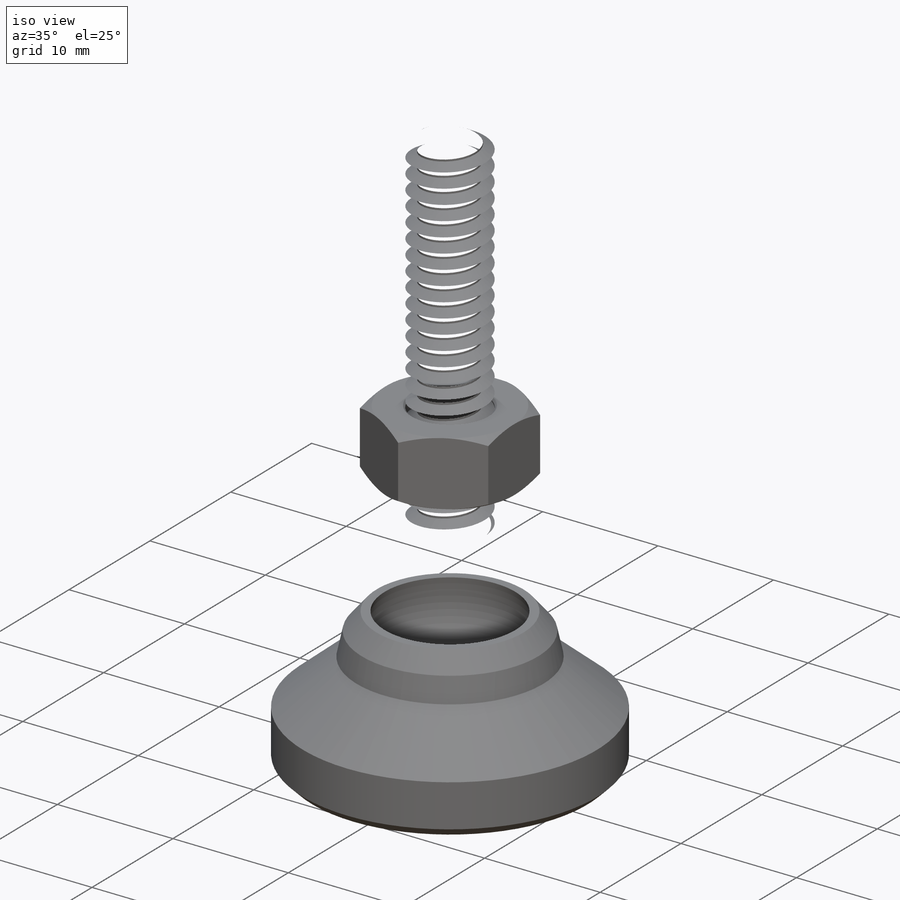
[diagram: iso view]
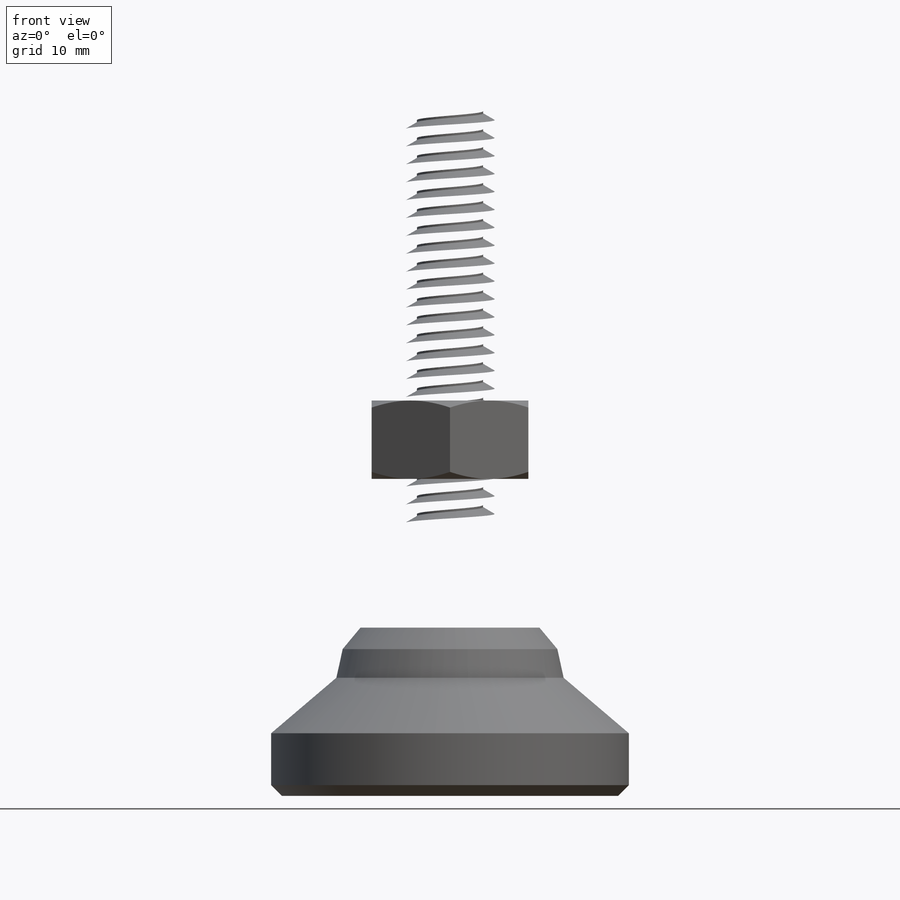
[diagram: front view]
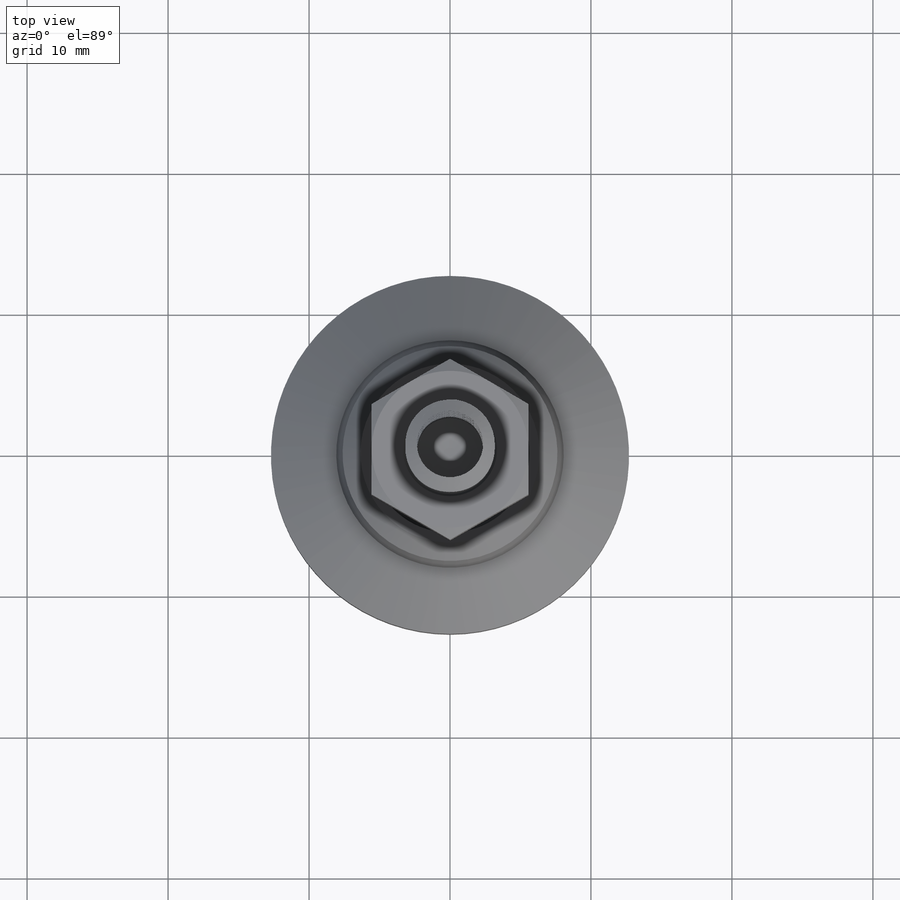
[diagram: top view]
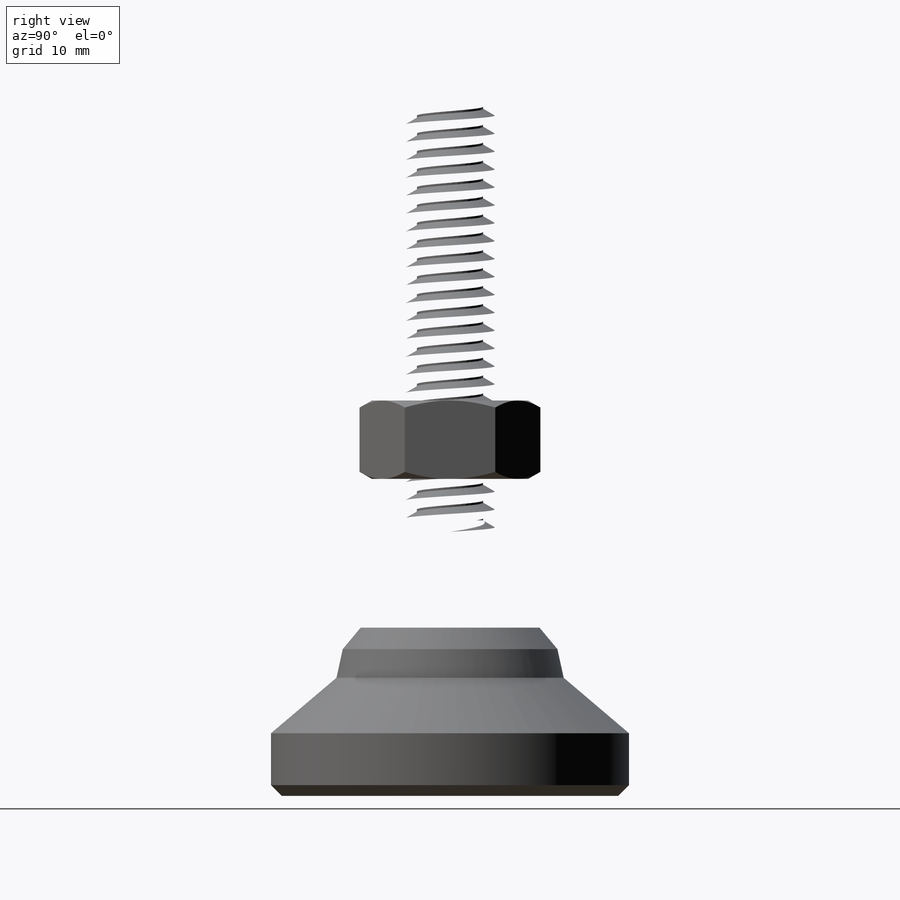
[diagram: right view]
SOLIDWORKS PART (.sldprt)
format: sldprt  version: not decoded by parser v0  size: 1,263,104 bytes
history: native  units: mm
features: sketch x14, revolve x4, extrude x3, cut_revolve x2, material x1, helix x1, sweep x1, cut_extrude x1, boolean_combine x1, plane x1 (+14 scaffold rows collapsed)
feature tree (43):
  scaffold x14  (default folders/planes/origin — collapsed)
  material  "Material <not specified>"
  sketch  "Sketch1"  dims[Thread Size=6.35mm Thread Lg.=31.75mm Base Dia.=25.4mm Overall Ht.=52.3875mm Hex=12.7mm Hex Lg.=4.7625mm D1=3.175mm]
  sketch  "Sketch2"  dims[c1.D6=9.525mm c1.D7=0.635mm c1.D10=17.4625mm c1.D1=~6.852248mm c2.D1=70.0deg c2.D2=9.525mm c3.D2=85.0deg c3.D3=~10.236206mm c3.D1=6.35mm c4.D2=6.35mm c5.D2=65.0deg c5.D3=6.985mm c5.D4=~1.724011mm c6.D4=75.0deg c6.H3=2.032mm c6.D6=1.5875mm c6.D8=6.35mm c6.D1=6.985mm c6.C1=0.762mm c6.D2=~17.666238mm c7.D1=16.129mm c7.D4=~23.017932mm c7.D2=15.24mm c7.H4=1.524mm c7.D9=~18.651143mm c7.D3=12.7mm c7.D10=8.89mm c7.H2=3.937mm c7.H1=4.445mm c7.D7=~0.715042mm c8.D4=0.508mm]
  revolve  "Revolve1"  Angle=360deg
  sketch  "Sketch12"
  revolve  "Revolve2"  Angle=360deg
  sketch  "Sketch4"
  extrude  "Boss-Extrude1"  [1 undecoded]
  sketch  "Sketch5"  dims[c1.D1=~2.947045mm c2.D1=30.0deg]
  cut_revolve  "Cut-Revolve2"  Angle=360deg
  sketch  "Sketch6"
  extrude  "Boss-Extrude2"  [1 undecoded]
  sketch  "Sketch7"  dims[D1=0.0mm]
  helix  "Helix/Spiral1"  Pitch=33.02mm
  sketch  "Sketch8"  dims[D1=1.27mm D2=~0.15875mm D3=12.7mm]
  sketch  "Sketch9"
  sweep  "Cut-Sweep1"
  cut_extrude  "Cut-Extrude1"  [1 undecoded]
  boolean_combine  "Combine1"
  plane  "Plane1"  Offset=21.166667mm
  sketch  "Sketch10"  dims[Nut Width=11.1125mm]
  extrude  "Boss-Extrude3"  Depth=5.55625mm Nut Height=5.55625mm
  sketch  "Sketch11"  dims[c1.D1=~1.473523mm c2.D1=30.0deg c2.D2=~1.262994mm c3.D2=45.0deg c3.D3=~0.15875mm c3.D1=~5.293164mm c4.D1=60.0deg]
  cut_revolve  "Cut-Revolve3"  Angle=360deg
  sketch  "Sketch13"  dims[c1.D1=~7.716235mm c2.D1=45.0deg c2.D2=1.27mm]
  revolve  "Revolve3"  Angle=360deg
  sketch  "SketchX"  dims[c1.D1=79.375mm c2.D1=15.0deg]
  sketch  "Sketch14"
  revolve  "Revolve4"  Angle=360deg
decode coverage: 17 of 27 modeling features carry decoded parameters
note: ~ marks probable driven/reference dimensions
note: 3 parameter values undecoded
summary: no parameter record found for 3 features
note: suppression state not decoded; provenance and decode notes live in map.json
